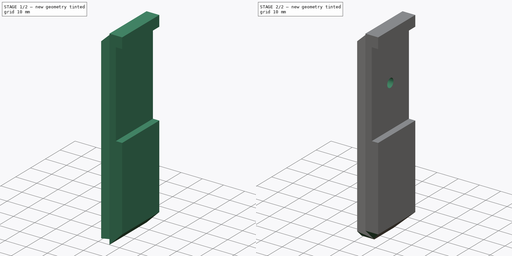
[diagram: build sequence overview — one tinted view per stage of 2, left to right]
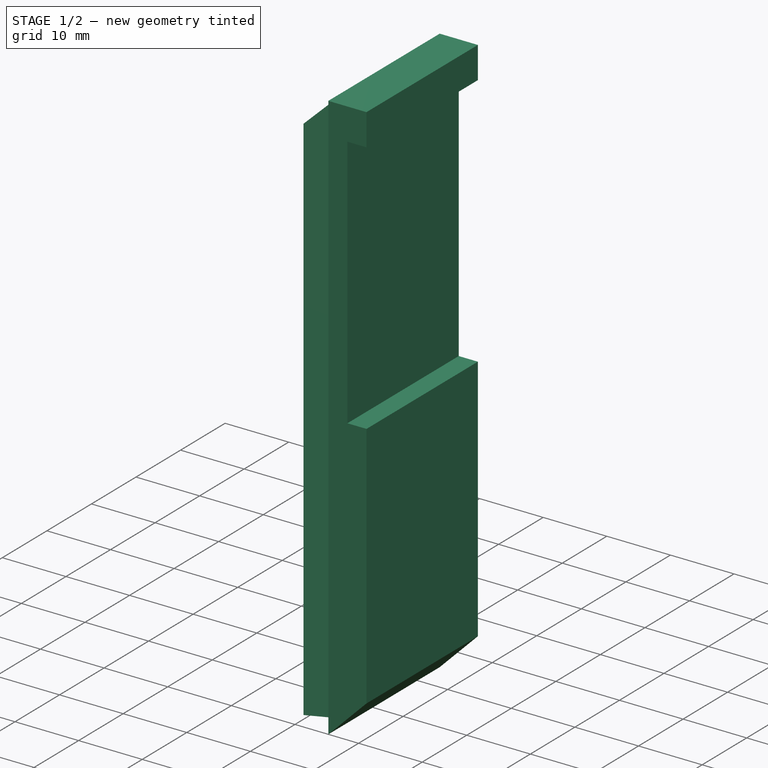
[diagram: stage 1 of 2 — iso view after this stage's code; geometry added in this stage tinted green]
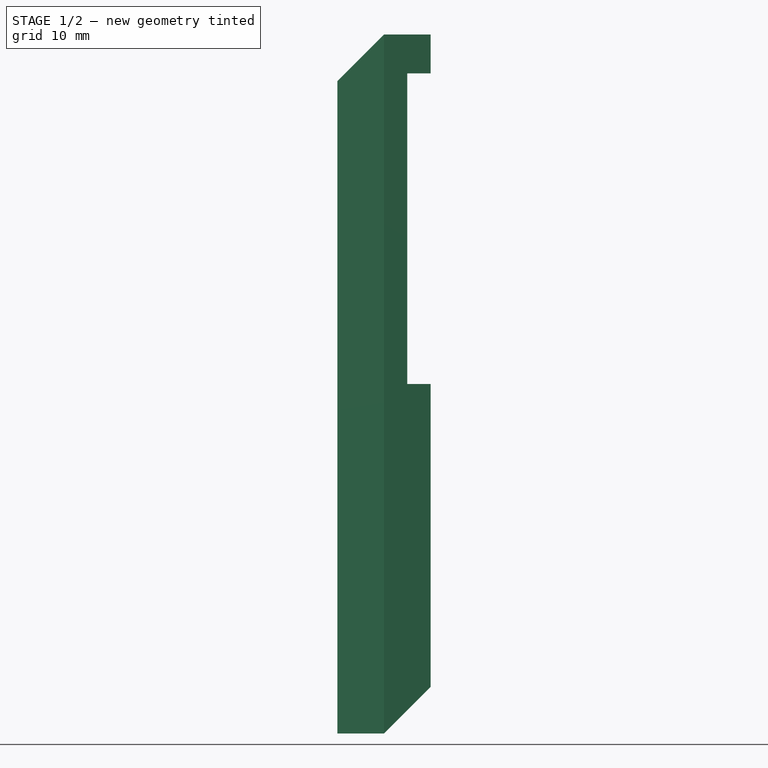
[diagram: stage 1 of 2 — front view after this stage's code; geometry added in this stage tinted green]
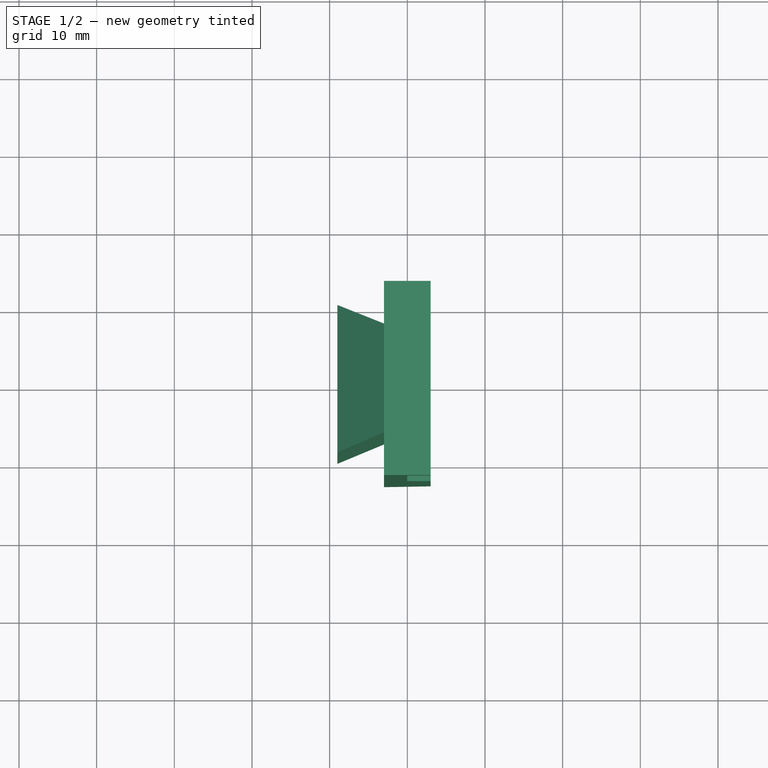
[diagram: stage 1 of 2 — top view after this stage's code; geometry added in this stage tinted green]
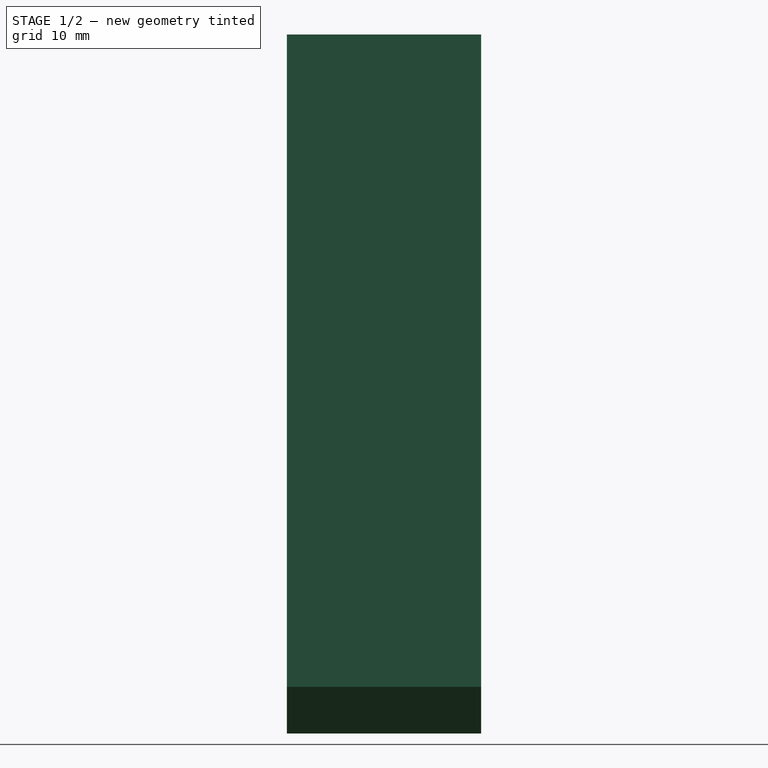
[diagram: stage 1 of 2 — right view after this stage's code; geometry added in this stage tinted green]
FCSTD DOCUMENT  (FreeCAD 0.18R16146 (Git))
Label: SideSlide
License: All rights reserved
LicenseURL: http://en.wikipedia.org/wiki/All_rights_reserved
objects: Sketcher::SketchObject×7, PartDesign::Pocket×2, PartDesign::Pad×1, PartDesign::Hole×1, PartDesign::Body×1
note: 16 computed .brp shape members not serialized (recipe doc carries the construction recipe); baked Part::Feature solids carry a one-line shape summary decoded from their .brp

FEATURE [Sketcher::SketchObject] Sketch  label="MasterXY"
  MapMode = 5
  Support = -> [XY_Plane]
  sketch-geometry (10):
    g0: LineSegment StartX=3 StartY=12.5 StartZ=0 EndX=-3 EndY=12.5 EndZ=0
    g1: LineSegment StartX=-3 StartY=12.5 StartZ=0 EndX=-3 EndY=7 EndZ=0
    g2: LineSegment StartX=-3 StartY=7 StartZ=0 EndX=-9 EndY=9.5 EndZ=0
    g3: LineSegment StartX=-9 StartY=9.5 StartZ=0 EndX=-9 EndY=-9.5 EndZ=0
    g4: LineSegment StartX=-9 StartY=-9.5 StartZ=0 EndX=-3 EndY=-7 EndZ=0
    g5: LineSegment StartX=-3 StartY=-7 StartZ=0 EndX=-3 EndY=-12.5 EndZ=0
    g6: LineSegment StartX=-3 StartY=-12.5 StartZ=0 EndX=3 EndY=-12.5 EndZ=0
    g7: LineSegment StartX=3 StartY=-12.5 StartZ=0 EndX=3 EndY=12.5 EndZ=0
    g8: LineSegment [constr] StartX=48.964 StartY=44.7988 StartZ=0 EndX=48.964 EndY=-45.2012 EndZ=0
    g9: LineSegment [constr] StartX=70.3254 StartY=41.9907 StartZ=0 EndX=70.3254 EndY=1.99075 EndZ=0
  constraints (24):
    c: Coincident(g0,g1)
    c: Vertical(g1)
    c: Coincident(g1,g2)
    c: Coincident(g2,g3)
    c: Coincident(g3,g4)
    c: Coincident(g4,g5)
    c: Coincident(g5,g6)
    c: Horizontal(g6)
    c: Coincident(g6,g7)
    c: Coincident(g7,g0)
    c: Equal(g0,g6)
    c: Symmetric(g0,g0,g-2)
    c: Symmetric(g0,g6,g-1)
    c: Symmetric(g4,g1,g-1)
    c: Symmetric(g3,g2,g-1)
    c: DistanceX(g0,g0) = 6
    c: DistanceY(g3,g3) = 19
    c: DistanceY(g4,g1) = 14
    c: Vertical(g8)
    c: DistanceY(g8,g8) = 90  'Length'
    c: Vertical(g9)
    c: DistanceY(g9,g9) = 40  'GuideWidth'
    c: DistanceY(g7,g7) = 25
    c: DistanceX(g3,g6) = 12
FEATURE [Sketcher::SketchObject] Sketch001  label="MasterXZ"
  ExternalGeometry = -> [Sketch]
  MapMode = 5
  Placement = pos=(0,0,0) rot=(1,0,0;1.5708rad)
  Support = -> [XZ_Plane]
  expr: Constraints[26] = Sketch.Constraints.GuideWidth
  sketch-geometry (12):
    g0: LineSegment StartX=0 StartY=48 StartZ=0 EndX=-19.5368 EndY=28.4632 EndZ=0
    g1: LineSegment StartX=-19.5368 StartY=28.4632 StartZ=0 EndX=-19.5368 EndY=48 EndZ=0
    g2: LineSegment StartX=-19.5368 StartY=48 StartZ=0 EndX=0 EndY=48 EndZ=0
    g3: LineSegment [constr] StartX=-3 StartY=45 StartZ=0 EndX=-3 EndY=-45 EndZ=0
    g4: LineSegment StartX=23.1252 StartY=-18.8748 StartZ=0 EndX=-26.2385 EndY=-68.2385 EndZ=0
    g5: LineSegment StartX=-26.2385 StartY=-68.2385 StartZ=0 EndX=23.1252 EndY=-68.2385 EndZ=0
    g6: LineSegment StartX=23.1252 StartY=-68.2385 StartZ=0 EndX=23.1252 EndY=-18.8748 EndZ=0
    g7: LineSegment StartX=0 StartY=40 StartZ=0 EndX=17.6512 EndY=40 EndZ=0
    g8: LineSegment StartX=17.6512 StartY=40 StartZ=0 EndX=17.6512 EndY=0 EndZ=0
    g9: LineSegment StartX=17.6512 StartY=0 StartZ=0 EndX=0 EndY=0 EndZ=0
    g10: LineSegment StartX=0 StartY=0 StartZ=0 EndX=0 EndY=40 EndZ=0
    g11: LineSegment StartX=3 StartY=0 StartZ=0 EndX=3 EndY=-39 EndZ=0
  constraints (32):
    c: PointOnObject(g0,g-2)
    c: Coincident(g0,g1)
    c: Vertical(g1)
    c: Coincident(g1,g2)
    c: Coincident(g2,g0)
    c: Horizontal(g2)
    c: PointOnObject(g-3,g3)
    c: DistanceY(g3,g3) = 90
    c: Angle(g0,g1) = 0.785398
    c: PointOnObject(g3,g0)
    c: Symmetric(g3,g3,g-1)
    c: Coincident(g4,g5)
    c: Horizontal(g5)
    c: Coincident(g5,g6)
    c: Vertical(g6)
    c: Angle(g5,g4) = 0.785398
    c: PointOnObject(g3,g4)
    c: Coincident(g4,g6)
    c: Coincident(g7,g8)
    c: Coincident(g8,g9)
    c: Coincident(g9,g10)
    c: Coincident(g10,g7)
    c: Horizontal(g7)
    c: Horizontal(g9)
    c: Vertical(g8)
    c: Vertical(g10)
    c: DistanceY(g8,g8) = 40
    c: DistanceY(g7,g3) = 5
    c: PointOnObject(g7,g-2)
    c: Coincident(g11,g-3)
    c: PointOnObject(g11,g4)
    c: Vertical(g11)
FEATURE [Sketcher::SketchObject] Sketch002  label="MasterYZ"
  ExternalGeometry = -> [Sketch001,Sketch]
  MapMode = 5
  Placement = pos=(0,0,0) rot=(0.57735,0.57735,0.57735;2.0944rad)
  Support = -> [YZ_Plane]
  sketch-geometry (11):
    g0: Circle CenterX=0 CenterY=20 CenterZ=0 NormalX=0 NormalY=0 NormalZ=1 AngleXU=0 Radius=2.5
    g1: LineSegment StartX=12.5 StartY=-39 StartZ=0 EndX=12.5 EndY=-48.9876 EndZ=0
    g2: LineSegment StartX=2.51237 StartY=-48.9876 StartZ=0 EndX=12.5 EndY=-39 EndZ=0
    g3: LineSegment StartX=2.51237 StartY=-48.9876 StartZ=0 EndX=12.5 EndY=-48.9876 EndZ=0
    g4: LineSegment [constr] StartX=-12.5 StartY=-7.1e-15 StartZ=0 EndX=12.5 EndY=-7.1e-15 EndZ=0
    g5: LineSegment [constr] StartX=12.5 StartY=-7.1e-15 StartZ=0 EndX=12.5 EndY=-39 EndZ=0
    g6: LineSegment [constr] StartX=12.5 StartY=-39 StartZ=0 EndX=-12.5 EndY=-39 EndZ=0
    g7: LineSegment [constr] StartX=-12.5 StartY=-39 StartZ=0 EndX=-12.5 EndY=-7.1e-15 EndZ=0
    g8: LineSegment StartX=-12.5 StartY=-39 StartZ=0 EndX=-12.5 EndY=-48.9876 EndZ=0
    g9: LineSegment StartX=-12.5 StartY=-48.9876 StartZ=0 EndX=-2.51237 EndY=-48.9876 EndZ=0
    g10: LineSegment StartX=-2.51237 StartY=-48.9876 StartZ=0 EndX=-12.5 EndY=-39 EndZ=0
  constraints (27):
    c: PointOnObject(g0,g-2)
    c: DistanceY(g-1,g0) = 20
    c: Diameter(g0) = 5
    c: Vertical(g1)
    c: Coincident(g2,g1)
    c: Coincident(g3,g2)
    c: Coincident(g3,g1)
    c: Horizontal(g3)
    c: Equal(g3,g1)
    c: Coincident(g4,g5)
    c: Coincident(g5,g6)
    c: Coincident(g6,g7)
    c: Coincident(g7,g4)
    c: Vertical(g5)
    c: Coincident(g4,g-4)
    c: PointOnObject(g-3,g6)
    c: Coincident(g4,g-4)
    c: Symmetric(g5,g6,g-3)
    c: Coincident(g1,g5)
    c: Coincident(g6,g8)
    c: Vertical(g8)
    c: Coincident(g8,g9)
    c: Horizontal(g9)
    c: Coincident(g9,g10)
    c: Coincident(g10,g8)
    c: Equal(g9,g8)
    c: Equal(g8,g3)
FEATURE [Sketcher::SketchObject] Sketch003
  MapMode = 5
  Support = -> [XY_Plane]
  expr: Constraints[19] = Sketch.Constraints[23]
  expr: Constraints[17] = Sketch.Constraints[17]
  expr: Constraints[18] = Sketch.Constraints[22]
  expr: Constraints[16] = Sketch.Constraints[16]
  expr: Constraints[15] = Sketch.Constraints[15]
  sketch-geometry (8):
    g0: LineSegment StartX=3 StartY=12.5 StartZ=0 EndX=-3 EndY=12.5 EndZ=0
    g1: LineSegment StartX=-3 StartY=12.5 StartZ=0 EndX=-3 EndY=7 EndZ=0
    g2: LineSegment StartX=-3 StartY=7 StartZ=0 EndX=-9 EndY=9.5 EndZ=0
    g3: LineSegment StartX=-9 StartY=9.5 StartZ=0 EndX=-9 EndY=-9.5 EndZ=0
    g4: LineSegment StartX=-9 StartY=-9.5 StartZ=0 EndX=-3 EndY=-7 EndZ=0
    g5: LineSegment StartX=-3 StartY=-7 StartZ=0 EndX=-3 EndY=-12.5 EndZ=0
    g6: LineSegment StartX=-3 StartY=-12.5 StartZ=0 EndX=3 EndY=-12.5 EndZ=0
    g7: LineSegment StartX=3 StartY=-12.5 StartZ=0 EndX=3 EndY=12.5 EndZ=0
  constraints (20):
    c: Coincident(g0,g1)
    c: Vertical(g1)
    c: Coincident(g1,g2)
    c: Coincident(g2,g3)
    c: Coincident(g3,g4)
    c: Coincident(g4,g5)
    c: Coincident(g5,g6)
    c: Horizontal(g6)
    c: Coincident(g6,g7)
    c: Coincident(g7,g0)
    c: Equal(g0,g6)
    c: Symmetric(g0,g0,g-2)
    c: Symmetric(g0,g6,g-1)
    c: Symmetric(g4,g1,g-1)
    c: Symmetric(g3,g2,g-1)
    c: DistanceX(g0,g0) = 6
    c: DistanceY(g3,g3) = 19
    c: DistanceY(g4,g1) = 14
    c: DistanceY(g7,g7) = 25
    c: DistanceX(g3,g6) = 12
FEATURE [PartDesign::Pad] Pad
  Length = 90
  Length2 = 100
  Midplane = true
  Profile = -> Sketch003
  Type = 0
  expr: Length = Sketch.Constraints.Length
FEATURE [Sketcher::SketchObject] Sketch004
  ExternalGeometry = -> [Sketch]
  MapMode = 5
  Placement = pos=(0,0,0) rot=(1,0,0;1.5708rad)
  Support = -> [XZ_Plane]
  expr: Constraints[27] = Sketch001.Constraints[27]
  expr: Constraints[26] = Sketch001.Constraints[26]
  expr: Constraints[15] = Sketch001.Constraints[15]
  expr: Constraints[8] = Sketch001.Constraints[8]
  expr: Constraints[7] = Sketch001.Constraints[7]
  sketch-geometry (11):
    g0: LineSegment StartX=0 StartY=48 StartZ=0 EndX=-19.5368 EndY=28.4632 EndZ=0
    g1: LineSegment StartX=-19.5368 StartY=28.4632 StartZ=0 EndX=-19.5368 EndY=48 EndZ=0
    g2: LineSegment StartX=-19.5368 StartY=48 StartZ=0 EndX=0 EndY=48 EndZ=0
    g3: LineSegment [constr] StartX=-3 StartY=45 StartZ=0 EndX=-3 EndY=-45 EndZ=0
    g4: LineSegment StartX=23.0912 StartY=-18.9088 StartZ=0 EndX=-26.2619 EndY=-68.2619 EndZ=0
    g5: LineSegment StartX=-26.2619 StartY=-68.2619 StartZ=0 EndX=23.0912 EndY=-68.2619 EndZ=0
    g6: LineSegment StartX=23.0912 StartY=-68.2619 StartZ=0 EndX=23.0912 EndY=-18.9088 EndZ=0
    g7: LineSegment StartX=0 StartY=40 StartZ=0 EndX=17.6512 EndY=40 EndZ=0
    g8: LineSegment StartX=17.6512 StartY=40 StartZ=0 EndX=17.6512 EndY=0 EndZ=0
    g9: LineSegment StartX=17.6512 StartY=0 StartZ=0 EndX=0 EndY=0 EndZ=0
    g10: LineSegment StartX=0 StartY=0 StartZ=0 EndX=0 EndY=40 EndZ=0
  constraints (29):
    c: PointOnObject(g0,g-2)
    c: Coincident(g0,g1)
    c: Vertical(g1)
    c: Coincident(g1,g2)
    c: Coincident(g2,g0)
    c: Horizontal(g2)
    c: PointOnObject(g-3,g3)
    c: DistanceY(g3,g3) = 90
    c: Angle(g0,g1) = 0.785398
    c: PointOnObject(g3,g0)
    c: Symmetric(g3,g3,g-1)
    c: Coincident(g4,g5)
    c: Horizontal(g5)
    c: Coincident(g5,g6)
    c: Vertical(g6)
    c: Angle(g5,g4) = 0.785398
    c: PointOnObject(g3,g4)
    c: Coincident(g4,g6)
    c: Coincident(g7,g8)
    c: Coincident(g8,g9)
    c: Coincident(g9,g10)
    c: Coincident(g10,g7)
    c: Horizontal(g7)
    c: Horizontal(g9)
    c: Vertical(g8)
    c: Vertical(g10)
    c: DistanceY(g8,g8) = 40
    c: DistanceY(g7,g3) = 5
    c: PointOnObject(g7,g-2)
FEATURE [PartDesign::Pocket] Pocket
  BaseFeature = -> Pad
  Length = 5
  Length2 = 100
  Midplane = true
  Profile = -> Sketch004
  Type = 1
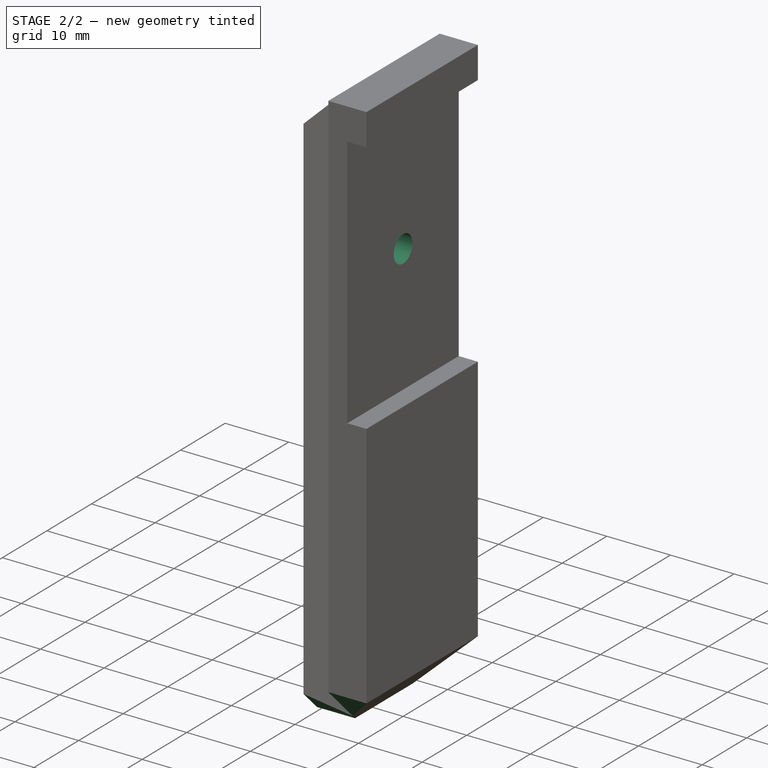
[diagram: stage 2 of 2 — iso view after this stage's code; geometry added in this stage tinted green]
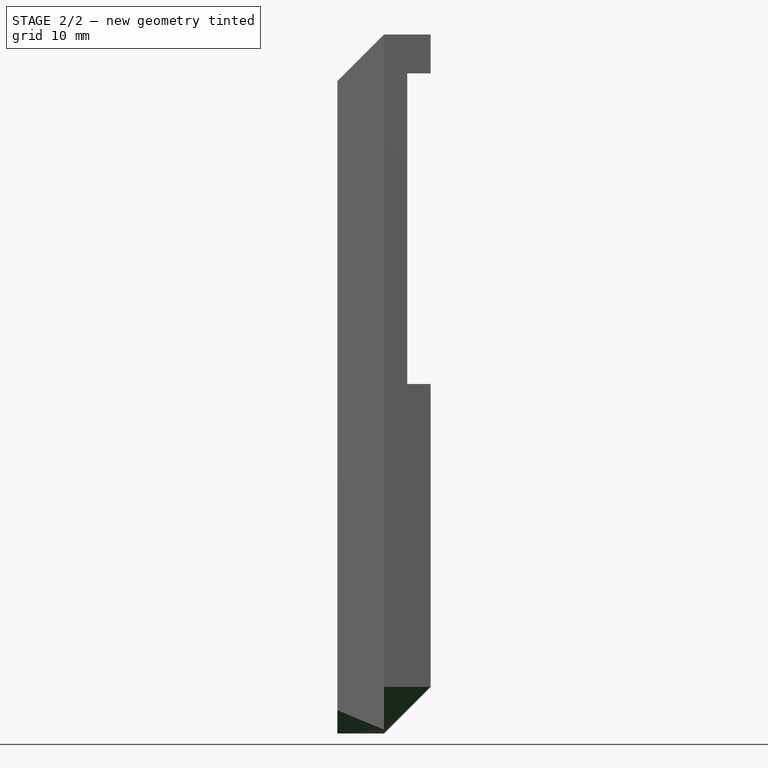
[diagram: stage 2 of 2 — front view after this stage's code; geometry added in this stage tinted green]
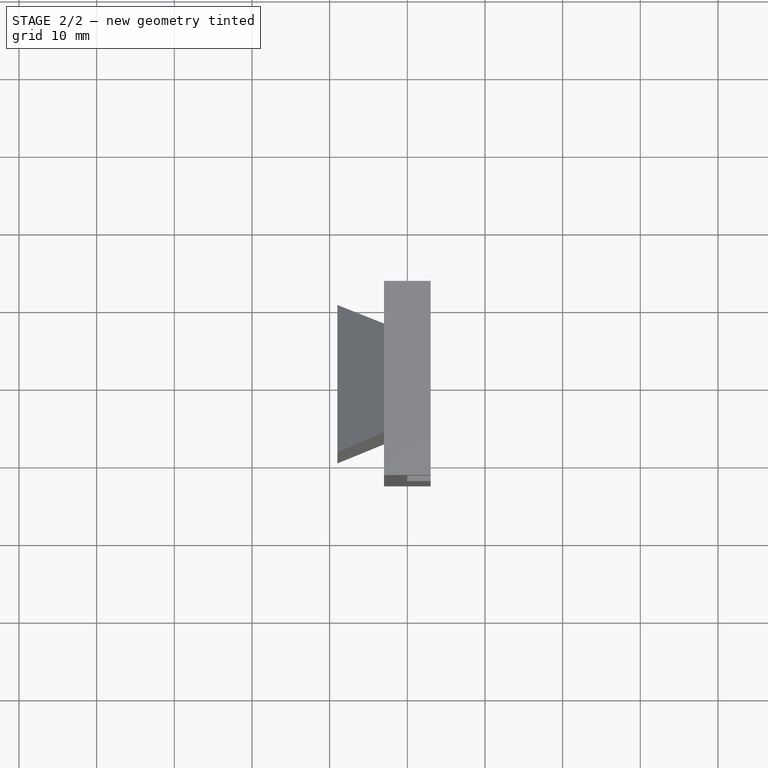
[diagram: stage 2 of 2 — top view after this stage's code; geometry added in this stage tinted green]
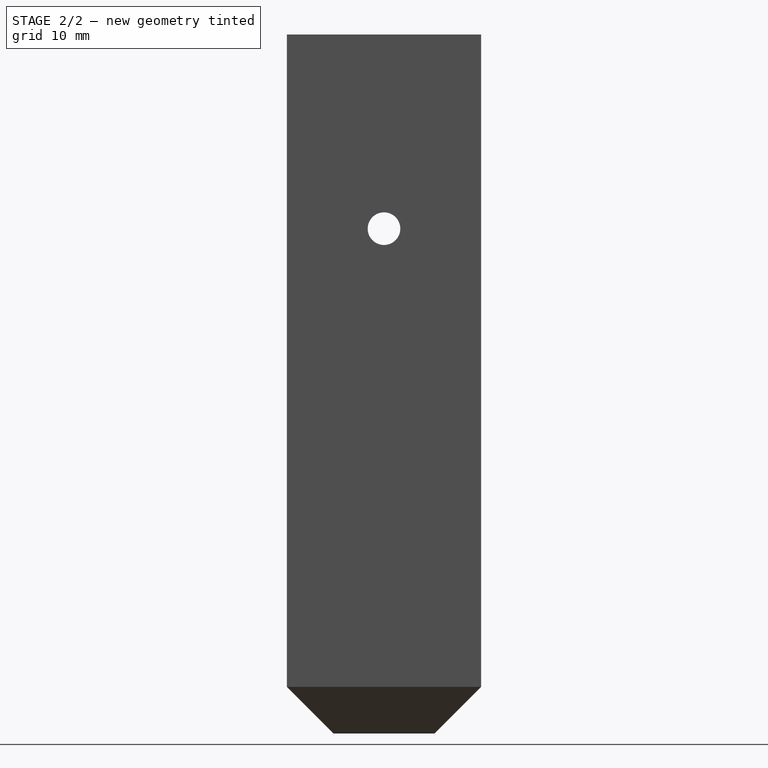
[diagram: stage 2 of 2 — right view after this stage's code; geometry added in this stage tinted green]
FEATURE [Sketcher::SketchObject] Sketch005
  MapMode = 5
  Placement = pos=(0,0,0) rot=(0.57735,0.57735,0.57735;2.0944rad)
  Support = -> [YZ_Plane]
  expr: Constraints[2] = Sketch002.Constraints[2]
  expr: Constraints[1] = Sketch002.Constraints[1]
  sketch-geometry (1):
    g0: Circle CenterX=0 CenterY=20 CenterZ=0 NormalX=0 NormalY=0 NormalZ=1 AngleXU=0 Radius=2.5
  constraints (3):
    c: PointOnObject(g0,g-2)
    c: DistanceY(g-1,g0) = 20
    c: Diameter(g0) = 5
FEATURE [PartDesign::Hole] Hole
  BaseFeature = -> Pocket
  Depth = 25
  DepthType = 0
  Diameter = 4.2
  DrillPoint = 1
  DrillPointAngle = 118
  HoleCutCountersinkAngle = 90
  HoleCutDepth = 0
  HoleCutDiameter = 5
  HoleCutType = 0
  ModelActualThread = false
  Profile = -> Sketch005
  Tapered = false
  TaperedAngle = 90
  ThreadAngle = 60
  ThreadClass = 0
  ThreadCutOffInner = 0.0866025
  ThreadCutOffOuter = 0.173205
  ThreadDirection = 1
  ThreadFit = 0
  ThreadPitch = 0.8
  ThreadSize = 6
  ThreadType = 1
  Threaded = true
FEATURE [Sketcher::SketchObject] Sketch006
  ExternalGeometry = -> [Sketch001,Sketch]
  MapMode = 5
  Placement = pos=(0,0,0) rot=(0.57735,0.57735,0.57735;2.0944rad)
  Support = -> [YZ_Plane]
  sketch-geometry (10):
    g0: LineSegment StartX=12.5 StartY=-39 StartZ=0 EndX=12.5 EndY=-48.9876 EndZ=0
    g1: LineSegment StartX=2.51237 StartY=-48.9876 StartZ=0 EndX=12.5 EndY=-39 EndZ=0
    g2: LineSegment StartX=2.51237 StartY=-48.9876 StartZ=0 EndX=12.5 EndY=-48.9876 EndZ=0
    g3: LineSegment [constr] StartX=-12.5 StartY=-7.1e-15 StartZ=0 EndX=12.5 EndY=-7.1e-15 EndZ=0
    g4: LineSegment [constr] StartX=12.5 StartY=-7.1e-15 StartZ=0 EndX=12.5 EndY=-39 EndZ=0
    g5: LineSegment [constr] StartX=12.5 StartY=-39 StartZ=0 EndX=-12.5 EndY=-39 EndZ=0
    g6: LineSegment [constr] StartX=-12.5 StartY=-39 StartZ=0 EndX=-12.5 EndY=-7.1e-15 EndZ=0
    g7: LineSegment StartX=-12.5 StartY=-39 StartZ=0 EndX=-12.5 EndY=-48.9876 EndZ=0
    g8: LineSegment StartX=-12.5 StartY=-48.9876 StartZ=0 EndX=-2.51237 EndY=-48.9876 EndZ=0
    g9: LineSegment StartX=-2.51237 StartY=-48.9876 StartZ=0 EndX=-12.5 EndY=-39 EndZ=0
  constraints (24):
    c: Vertical(g0)
    c: Coincident(g1,g0)
    c: Coincident(g2,g1)
    c: Coincident(g2,g0)
    c: Horizontal(g2)
    c: Equal(g2,g0)
    c: Coincident(g3,g4)
    c: Coincident(g4,g5)
    c: Coincident(g5,g6)
    c: Coincident(g6,g3)
    c: Vertical(g4)
    c: Coincident(g3,g-4)
    c: PointOnObject(g-3,g5)
    c: Coincident(g3,g-4)
    c: Symmetric(g4,g5,g-3)
    c: Coincident(g0,g4)
    c: Coincident(g5,g7)
    c: Vertical(g7)
    c: Coincident(g7,g8)
    c: Horizontal(g8)
    c: Coincident(g8,g9)
    c: Coincident(g9,g7)
    c: Equal(g8,g7)
    c: Equal(g7,g2)
FEATURE [PartDesign::Pocket] Pocket001
  BaseFeature = -> Hole
  Length = 5
  Length2 = 100
  Midplane = true
  Profile = -> Sketch006
  Type = 1
FEATURE [PartDesign::Body] Body
  Group = -> [Sketch,Sketch001,Sketch002,Sketch003,Pad,Sketch004,Pocket,Sketch005,Hole,Sketch006,Pocket001]
  Origin = -> Origin
  Tip = -> Pocket001
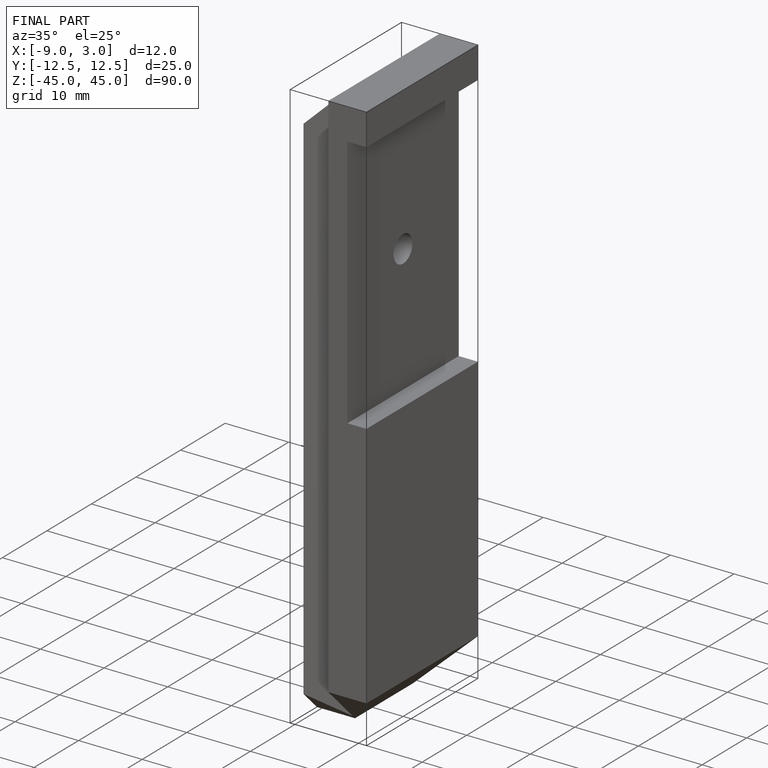
[diagram: finished part — iso view with bounding-box wireframe]
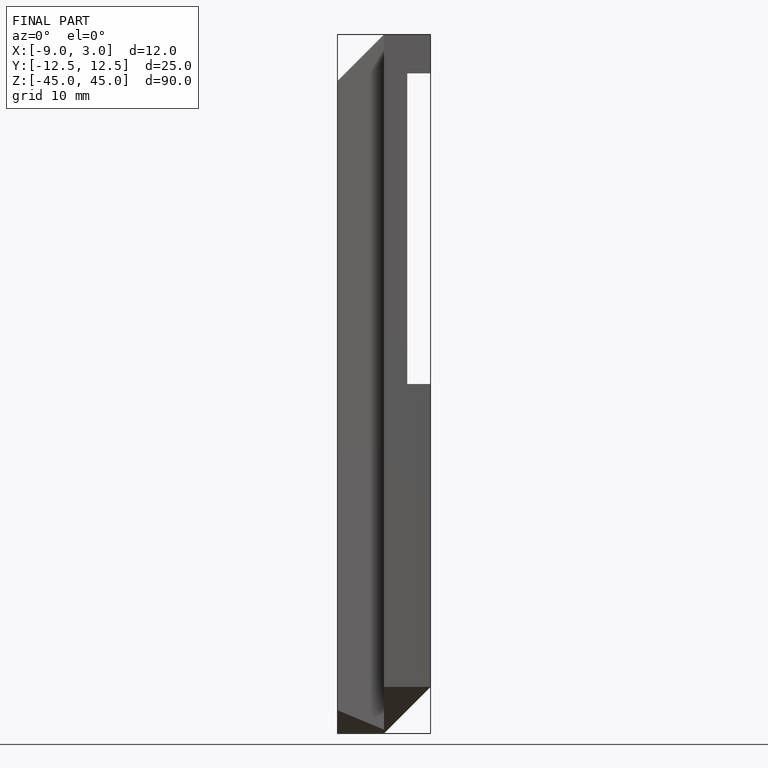
[diagram: finished part — front view with bounding-box wireframe]
